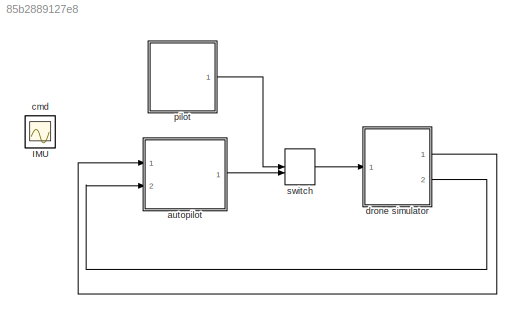
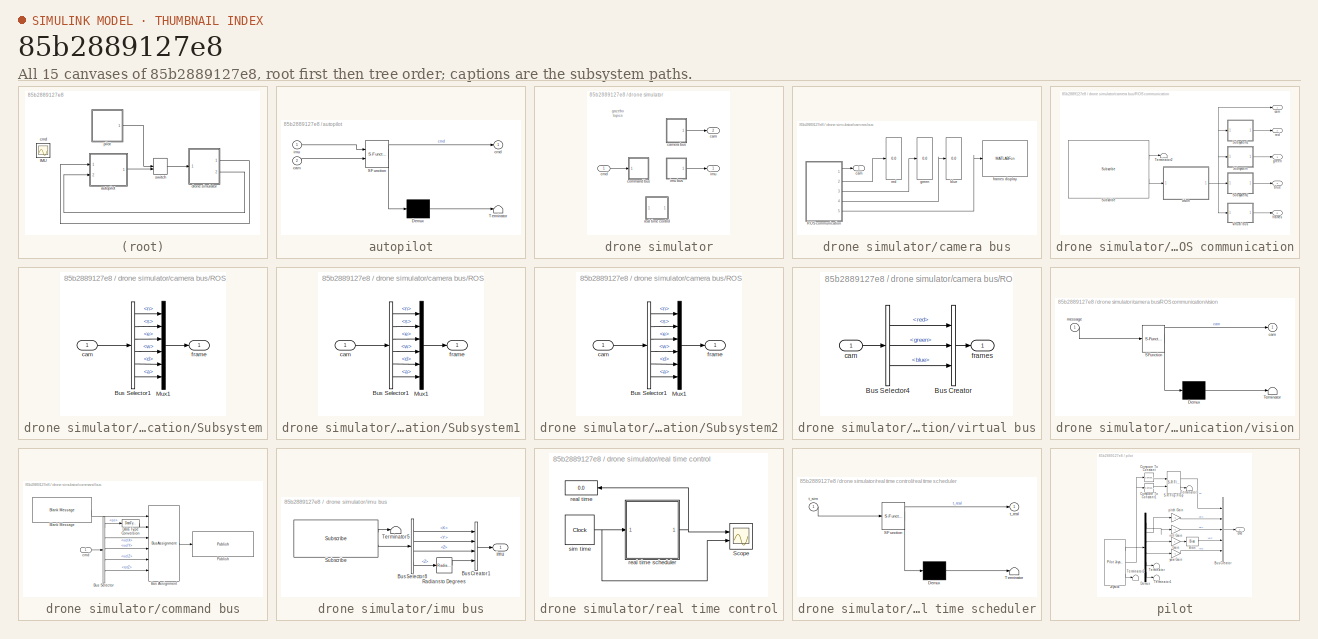
[diagram: thumbnail index - all 15 canvases of the model, root first then tree order]
MODEL slx_85b2889127e8
KIND model
CONFIG AbsTol = auto
CONFIG EnableMultiTasking = off
CONFIG FixedStep = sample_time
CONFIG MaxStep = auto
CONFIG MinStep = auto
CONFIG PostLoadFcn = load('drone_buses.mat');
CONFIG RelTol = 1e-3
CONFIG SampleTimeConstraint = Unconstrained
CONFIG Solver = FixedStepAuto
CONFIG SolverName = FixedStepAuto
CONFIG StartTime = 0.0
CONFIG StopTime = inf
WORKSPACE source: MAT-file member
WORKSPACE SL_ROS_VariableLengthArrays_MaxSizes: struct (value not decoded)
BLOCK [Scope] IMU
  IOType = viewer
  NumInputPorts = 1
  Ports = []
  ScopeSpecificationString = Simulink.scopes.TimeScopeBlockCfg('CurrentConfiguration', extmgr.ConfigurationSet(extmgr.Configuration('Core','General UI',true,'ShowStatusbar',false),extmgr.Configuration('Core','Source UI',true),extmgr.Configuration('Sources','WiredSimulink',true,'DataLoggingVariableName','ScopeData1'),extmgr.Configuration('Visuals','Time Domain',true,'TimeAxisLabels','None','SerializedDisplays',{struct('MinYLim...<+6666ch>
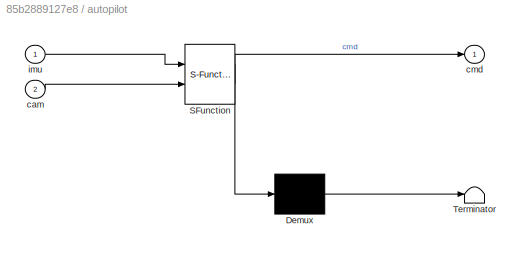
BLOCK [SubSystem] autopilot
  ErrorFcn = Stateflow.Translate.translate
  PermitHierarchicalResolution = ExplicitOnly
  Ports = [2, 1]
  RequestExecContextInheritance = off
  SFBlockType = Chart
  TreatAsAtomicUnit = on
  Variant = off
BLOCK [Demux] autopilot/ Demux 
  Outputs = 1
  Ports = [1, 1]
BLOCK [S-Function] autopilot/ SFunction 
  EnableBusSupport = on
  FunctionName = sf_sfun
  PortCounts = [2 2]
  Ports = [2, 2]
  SFcnIsStateOwnerBlock = off
  SFunctionDeploymentMode = off
  Tag = Stateflow S-Function drone_control2 3
BLOCK [Terminator] autopilot/ Terminator 
BLOCK [Inport] autopilot/cam
  IconDisplay = Port number
  Port = 2
BLOCK [Outport] autopilot/cmd
  IconDisplay = Port number
BLOCK [Inport] autopilot/imu
  IconDisplay = Port number
BLOCK [Scope] cmd
  IOType = viewer
  NumInputPorts = 1
  Ports = []
  ScopeSpecificationString = Simulink.scopes.TimeScopeBlockCfg('CurrentConfiguration', extmgr.ConfigurationSet(extmgr.Configuration('Core','General UI',true,'ShowStatusbar',false),extmgr.Configuration('Core','Source UI',true),extmgr.Configuration('Sources','WiredSimulink',true),extmgr.Configuration('Visuals','Time Domain',true,'TimeAxisLabels','None','SerializedDisplays',{struct('MinYLimReal','-1','MaxYLimReal','2','YLabelRea...<+4547ch>
BLOCK [SubSystem] drone simulator
  Ports = [1, 2]
  RequestExecContextInheritance = off
  Variant = off
BLOCK [Outport] drone simulator/cam
  IconDisplay = Port number
  Port = 2
BLOCK [SubSystem] drone simulator/camera bus
  Ports = [0, 1]
  RequestExecContextInheritance = off
  Variant = off
BLOCK [SubSystem] drone simulator/camera bus/ROS communication
  Ports = [0, 5]
  RequestExecContextInheritance = off
  Variant = off
BLOCK [Reference] drone simulator/camera bus/ROS communication/Subscribe  REF=robotlib/Subscribe
  Ports = [0, 2]
  SourceBlock = robotlib/Subscribe
  SourceLibraryInfo = This block requires Robotics System Toolbox
  SourceProductBaseCode = RO
  SourceProductName = Robotics System Toolbox
  SourceType = ROS Subscribe
BLOCK [SubSystem] drone simulator/camera bus/ROS communication/Subsystem
  Ports = [1, 1]
  RequestExecContextInheritance = off
  Variant = off
BLOCK [BusSelector] drone simulator/camera bus/ROS communication/Subsystem/Bus Selector1
  OutputAsBus = off
  OutputSignals = green.n,green.s,green.e,green.w,green.d,green.a
  Ports = [1, 6]
BLOCK [Mux] drone simulator/camera bus/ROS communication/Subsystem/Mux1
  DisplayOption = bar
  Inputs = 6
  Ports = [6, 1]
BLOCK [Inport] drone simulator/camera bus/ROS communication/Subsystem/cam
  IconDisplay = Port number
BLOCK [Outport] drone simulator/camera bus/ROS communication/Subsystem/frame
  IconDisplay = Port number
BLOCK [SubSystem] drone simulator/camera bus/ROS communication/Subsystem1
  Ports = [1, 1]
  RequestExecContextInheritance = off
  Variant = off
BLOCK [BusSelector] drone simulator/camera bus/ROS communication/Subsystem1/Bus Selector1
  OutputAsBus = off
  OutputSignals = red.n,red.s,red.e,red.w,red.d,red.a
  Ports = [1, 6]
BLOCK [Mux] drone simulator/camera bus/ROS communication/Subsystem1/Mux1
  DisplayOption = bar
  Inputs = 6
  Ports = [6, 1]
BLOCK [Inport] drone simulator/camera bus/ROS communication/Subsystem1/cam
  IconDisplay = Port number
BLOCK [Outport] drone simulator/camera bus/ROS communication/Subsystem1/frame
  IconDisplay = Port number
BLOCK [SubSystem] drone simulator/camera bus/ROS communication/Subsystem2
  Ports = [1, 1]
  RequestExecContextInheritance = off
  Variant = off
BLOCK [BusSelector] drone simulator/camera bus/ROS communication/Subsystem2/Bus Selector1
  OutputAsBus = off
  OutputSignals = blue.n,blue.s,blue.e,blue.w,blue.d,blue.a
  Ports = [1, 6]
BLOCK [Mux] drone simulator/camera bus/ROS communication/Subsystem2/Mux1
  DisplayOption = bar
  Inputs = 6
  Ports = [6, 1]
BLOCK [Inport] drone simulator/camera bus/ROS communication/Subsystem2/cam
  IconDisplay = Port number
BLOCK [Outport] drone simulator/camera bus/ROS communication/Subsystem2/frame
  IconDisplay = Port number
BLOCK [Terminator] drone simulator/camera bus/ROS communication/Terminator2
BLOCK [Outport] drone simulator/camera bus/ROS communication/blue
  IconDisplay = Port number
  Port = 4
BLOCK [Outport] drone simulator/camera bus/ROS communication/cam
  IconDisplay = Port number
BLOCK [Outport] drone simulator/camera bus/ROS communication/frames
  IconDisplay = Port number
  Port = 5
BLOCK [Outport] drone simulator/camera bus/ROS communication/green
  IconDisplay = Port number
  Port = 3
BLOCK [Outport] drone simulator/camera bus/ROS communication/red
  IconDisplay = Port number
  Port = 2
BLOCK [SubSystem] drone simulator/camera bus/ROS communication/virtual bus
  Ports = [1, 1]
  RequestExecContextInheritance = off
  Variant = off
BLOCK [BusCreator] drone simulator/camera bus/ROS communication/virtual bus/Bus Creator
  DisplayOption = bar
  InheritFromInputs = off
  Inputs = 3
  OutDataTypeStr = Bus: bus_camera
  Ports = [3, 1]
BLOCK [BusSelector] drone simulator/camera bus/ROS communication/virtual bus/Bus Selector4
  OutputAsBus = off
  OutputSignals = red,green,blue
  Ports = [1, 3]
BLOCK [Inport] drone simulator/camera bus/ROS communication/virtual bus/cam
  IconDisplay = Port number
BLOCK [Outport] drone simulator/camera bus/ROS communication/virtual bus/frames
  IconDisplay = Port number
BLOCK [SubSystem] drone simulator/camera bus/ROS communication/vision
  ErrorFcn = Stateflow.Translate.translate
  PermitHierarchicalResolution = ExplicitOnly
  Ports = [1, 1]
  RequestExecContextInheritance = off
  SFBlockType = MATLAB Function
  TreatAsAtomicUnit = on
  Variant = off
BLOCK [Demux] drone simulator/camera bus/ROS communication/vision/ Demux 
  Outputs = 1
  Ports = [1, 1]
BLOCK [S-Function] drone simulator/camera bus/ROS communication/vision/ SFunction 
  EnableBusSupport = on
  FunctionName = sf_sfun
  PortCounts = [1 2]
  Ports = [1, 2]
  SFcnIsStateOwnerBlock = off
  SFunctionDeploymentMode = off
  Tag = Stateflow S-Function drone_control2 4
BLOCK [Terminator] drone simulator/camera bus/ROS communication/vision/ Terminator 
BLOCK [Outport] drone simulator/camera bus/ROS communication/vision/cam
  IconDisplay = Port number
BLOCK [Inport] drone simulator/camera bus/ROS communication/vision/message
  IconDisplay = Port number
BLOCK [Display] drone simulator/camera bus/blue
  Decimation = 1
  Ports = [1]
BLOCK [Outport] drone simulator/camera bus/cam
  IconDisplay = Port number
BLOCK [MATLABFcn] drone simulator/camera bus/frames display
  MATLABFcn = frames_display
  Output1D = off
  OutputDimensions = 0
  Ports = [1]
  StartFcn = clear functions;\nclc;
BLOCK [Display] drone simulator/camera bus/green
  Decimation = 1
  Ports = [1]
BLOCK [Display] drone simulator/camera bus/red
  Decimation = 1
  Ports = [1]
BLOCK [Inport] drone simulator/cmd
  IconDisplay = Port number
BLOCK [SubSystem] drone simulator/command bus
  Ports = [1]
  RequestExecContextInheritance = off
  Variant = off
BLOCK [Reference] drone simulator/command bus/Blank Message  REF=robotlib/Blank Message
  Ports = [0, 1]
  SourceBlock = robotlib/Blank Message
  SourceLibraryInfo = This block requires Robotics System Toolbox
  SourceProductBaseCode = RO
  SourceProductName = Robotics System Toolbox
  SourceType = ROS Blank Message
BLOCK [BusAssignment] drone simulator/command bus/Bus Assignment
  AssignedSignals = Position.X,Orientation.X,Orientation.Y,Orientation.Z,Orientation.W
  Ports = [6, 1]
BLOCK [BusSelector] drone simulator/command bus/Bus Selector
  OutputAsBus = off
  OutputSignals = on,velX,velY,velZ,rotZ
  Ports = [1, 5]
BLOCK [DataTypeConversion] drone simulator/command bus/Data Type Conversion
  OutDataTypeStr = double
  RndMeth = Floor
  SaturateOnIntegerOverflow = off
BLOCK [Reference] drone simulator/command bus/Publish  REF=robotlib/Publish
  Ports = [1]
  SourceBlock = robotlib/Publish
  SourceLibraryInfo = This block requires Robotics System Toolbox
  SourceProductBaseCode = RO
  SourceProductName = Robotics System Toolbox
  SourceType = ROS Publish
BLOCK [Inport] drone simulator/command bus/cmd
  IconDisplay = Port number
BLOCK [Outport] drone simulator/imu
  IconDisplay = Port number
BLOCK [SubSystem] drone simulator/imu bus
  Ports = [0, 1]
  RequestExecContextInheritance = off
  Variant = off
BLOCK [BusCreator] drone simulator/imu bus/Bus Creator1
  DisplayOption = bar
  InheritFromInputs = off
  Inputs = 4
  NonVirtualBus = on
  OutDataTypeStr = Bus: bus_IMU
  Ports = [4, 1]
BLOCK [BusSelector] drone simulator/imu bus/Bus Selector8
  DialogController = Simulink.DDGSource_BusSelector
  OutputAsBus = off
  OutputSignals = Pose.Position.X,Pose.Position.Y,Pose.Position.Z,Pose.Orientation.Z
  Ports = [1, 4]
BLOCK [Reference] drone simulator/imu bus/Radians to Degrees  REF=simulink_extras/Transformations/Radians
to Degrees
  Ports = [1, 1]
  SourceBlock = simulink_extras/Transformations/Radians\nto Degrees
  SourceProductBaseCode = SL
  SourceProductName = Simulink
  SourceType = RadiansToDegrees
BLOCK [Reference] drone simulator/imu bus/Subscribe  REF=robotlib/Subscribe
  Ports = [0, 2]
  SourceBlock = robotlib/Subscribe
  SourceLibraryInfo = This block requires Robotics System Toolbox
  SourceProductBaseCode = RO
  SourceProductName = Robotics System Toolbox
  SourceType = ROS Subscribe
BLOCK [Terminator] drone simulator/imu bus/Terminator5
BLOCK [Outport] drone simulator/imu bus/imu
  IconDisplay = Port number
BLOCK [SubSystem] drone simulator/real time control
  Ports = []
  RequestExecContextInheritance = off
  Variant = off
BLOCK [Scope] drone simulator/real time control/Scope
  Commented = on
  NumInputPorts = 2
  Ports = [2]
  ScopeSpecificationString = Simulink.scopes.TimeScopeBlockCfg('CurrentConfiguration', extmgr.ConfigurationSet(extmgr.Configuration('Core','General UI',true),extmgr.Configuration('Core','Source UI',true),extmgr.Configuration('Sources','WiredSimulink',true),extmgr.Configuration('Visuals','Time Domain',true,'SerializedDisplays',{struct('MinYLimReal','0','MaxYLimReal','120','YLabelReal','','MinYLimMag','39.34789','MaxYLimMag','4...<+1531ch>
BLOCK [Display] drone simulator/real time control/real time
  Commented = on
  Decimation = 1
  Format = bank
  Ports = [1]
BLOCK [SubSystem] drone simulator/real time control/real time scheduler
  ErrorFcn = Stateflow.Translate.translate
  PermitHierarchicalResolution = ExplicitOnly
  Ports = [1, 1]
  RequestExecContextInheritance = off
  SFBlockType = MATLAB Function
  TreatAsAtomicUnit = on
  Variant = off
BLOCK [Demux] drone simulator/real time control/real time scheduler/ Demux 
  Outputs = 1
  Ports = [1, 1]
BLOCK [S-Function] drone simulator/real time control/real time scheduler/ SFunction 
  EnableBusSupport = on
  FunctionName = sf_sfun
  PortCounts = [1 2]
  Ports = [1, 2]
  SFcnIsStateOwnerBlock = off
  SFunctionDeploymentMode = off
  Tag = Stateflow S-Function drone_control2 2
BLOCK [Terminator] drone simulator/real time control/real time scheduler/ Terminator 
BLOCK [Outport] drone simulator/real time control/real time scheduler/t_real
  IconDisplay = Port number
BLOCK [Inport] drone simulator/real time control/real time scheduler/t_sim
  IconDisplay = Port number
BLOCK [Clock] drone simulator/real time control/sim time
  DisplayTime = on
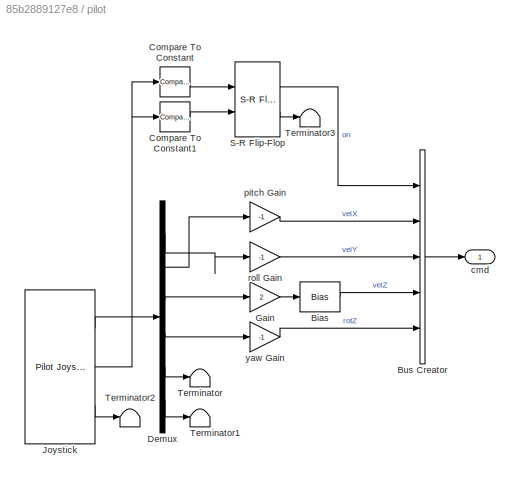
BLOCK [SubSystem] pilot
  Ports = [0, 1]
  RequestExecContextInheritance = off
  Variant = off
BLOCK [Bias] pilot/Bias
  Bias = -1
  SaturateOnIntegerOverflow = off
BLOCK [BusCreator] pilot/Bus Creator
  DisplayOption = bar
  InheritFromInputs = off
  Inputs = 5
  NonVirtualBus = on
  OutDataTypeStr = Bus: bus_command
  Ports = [5, 1]
BLOCK [Reference] pilot/Compare To Constant  REF=simulink/Logic and Bit
Operations/Compare
To Constant
  Ports = [1, 1]
  SourceBlock = simulink/Logic and Bit\nOperations/Compare\nTo Constant
  SourceProductBaseCode = SL
  SourceProductName = Simulink
  SourceType = Compare To Constant
BLOCK [Reference] pilot/Compare To Constant1  REF=simulink/Logic and Bit
Operations/Compare
To Constant
  Ports = [1, 1]
  SourceBlock = simulink/Logic and Bit\nOperations/Compare\nTo Constant
  SourceProductBaseCode = SL
  SourceProductName = Simulink
  SourceType = Compare To Constant
BLOCK [Demux] pilot/Demux
  DisplayOption = bar
  Outputs = 6
  Ports = [1, 6]
BLOCK [Gain] pilot/Gain
  Gain = 2
  OutDataTypeStr = Inherit: Inherit via internal rule
  ParamDataTypeStr = Inherit: Inherit via internal rule
  SaturateOnIntegerOverflow = off
BLOCK [Reference] pilot/Joystick  REF=aerolibanimutils/Pilot Joystick
  Ports = [0, 3]
  SourceBlock = aerolibanimutils/Pilot Joystick
  SourceProductBaseCode = AE
  SourceProductName = Aerospace Blockset
  SourceType = PilotJoystick
BLOCK [Reference] pilot/S-R Flip-Flop  REF=simulink_extras/Flip Flops/S-R
Flip-Flop
  Ports = [2, 2]
  SourceBlock = simulink_extras/Flip Flops/S-R\nFlip-Flop
  SourceProductBaseCode = SL
  SourceProductName = Simulink
  SourceType = SRFlipFlop
BLOCK [Terminator] pilot/Terminator
BLOCK [Terminator] pilot/Terminator1
BLOCK [Terminator] pilot/Terminator2
BLOCK [Terminator] pilot/Terminator3
BLOCK [Outport] pilot/cmd
  IconDisplay = Port number
BLOCK [Gain] pilot/pitch Gain
  Gain = -1
  OutDataTypeStr = Inherit: Inherit via internal rule
  ParamDataTypeStr = Inherit: Inherit via internal rule
  SaturateOnIntegerOverflow = off
BLOCK [Gain] pilot/roll Gain
  Gain = -1
  OutDataTypeStr = Inherit: Inherit via internal rule
  ParamDataTypeStr = Inherit: Inherit via internal rule
  SaturateOnIntegerOverflow = off
BLOCK [Gain] pilot/yaw Gain
  Gain = -1
  OutDataTypeStr = Inherit: Inherit via internal rule
  ParamDataTypeStr = Inherit: Inherit via internal rule
  SaturateOnIntegerOverflow = off
BLOCK [ManualSwitch] switch
  CurrentSetting = 0
ANNOTATION drone simulator: gazebo topics
LINE autopilot:1 -> switch:2
LINE drone simulator/camera bus/ROS communication/Subscribe:1 -> drone simulator/camera bus/ROS communication/Terminator2:1
LINE drone simulator/camera bus/ROS communication/Subscribe:2 -> drone simulator/camera bus/ROS communication/vision:1
LINE drone simulator/camera bus/ROS communication/Subsystem/Bus Selector1:1 -> drone simulator/camera bus/ROS communication/Subsystem/Mux1:1
LINE drone simulator/camera bus/ROS communication/Subsystem/Bus Selector1:2 -> drone simulator/camera bus/ROS communication/Subsystem/Mux1:2
LINE drone simulator/camera bus/ROS communication/Subsystem/Bus Selector1:3 -> drone simulator/camera bus/ROS communication/Subsystem/Mux1:3
LINE drone simulator/camera bus/ROS communication/Subsystem/Bus Selector1:4 -> drone simulator/camera bus/ROS communication/Subsystem/Mux1:4
LINE drone simulator/camera bus/ROS communication/Subsystem/Bus Selector1:5 -> drone simulator/camera bus/ROS communication/Subsystem/Mux1:5
LINE drone simulator/camera bus/ROS communication/Subsystem/Bus Selector1:6 -> drone simulator/camera bus/ROS communication/Subsystem/Mux1:6
LINE drone simulator/camera bus/ROS communication/Subsystem/Mux1:1 -> drone simulator/camera bus/ROS communication/Subsystem/frame:1
LINE drone simulator/camera bus/ROS communication/Subsystem/cam:1 -> drone simulator/camera bus/ROS communication/Subsystem/Bus Selector1:1
LINE drone simulator/camera bus/ROS communication/Subsystem1/Bus Selector1:1 -> drone simulator/camera bus/ROS communication/Subsystem1/Mux1:1
LINE drone simulator/camera bus/ROS communication/Subsystem1/Bus Selector1:2 -> drone simulator/camera bus/ROS communication/Subsystem1/Mux1:2
LINE drone simulator/camera bus/ROS communication/Subsystem1/Bus Selector1:3 -> drone simulator/camera bus/ROS communication/Subsystem1/Mux1:3
LINE drone simulator/camera bus/ROS communication/Subsystem1/Bus Selector1:4 -> drone simulator/camera bus/ROS communication/Subsystem1/Mux1:4
LINE drone simulator/camera bus/ROS communication/Subsystem1/Bus Selector1:5 -> drone simulator/camera bus/ROS communication/Subsystem1/Mux1:5
LINE drone simulator/camera bus/ROS communication/Subsystem1/Bus Selector1:6 -> drone simulator/camera bus/ROS communication/Subsystem1/Mux1:6
LINE drone simulator/camera bus/ROS communication/Subsystem1/Mux1:1 -> drone simulator/camera bus/ROS communication/Subsystem1/frame:1
LINE drone simulator/camera bus/ROS communication/Subsystem1/cam:1 -> drone simulator/camera bus/ROS communication/Subsystem1/Bus Selector1:1
LINE drone simulator/camera bus/ROS communication/Subsystem1:1 -> drone simulator/camera bus/ROS communication/red:1
LINE drone simulator/camera bus/ROS communication/Subsystem2/Bus Selector1:1 -> drone simulator/camera bus/ROS communication/Subsystem2/Mux1:1
LINE drone simulator/camera bus/ROS communication/Subsystem2/Bus Selector1:2 -> drone simulator/camera bus/ROS communication/Subsystem2/Mux1:2
LINE drone simulator/camera bus/ROS communication/Subsystem2/Bus Selector1:3 -> drone simulator/camera bus/ROS communication/Subsystem2/Mux1:3
LINE drone simulator/camera bus/ROS communication/Subsystem2/Bus Selector1:4 -> drone simulator/camera bus/ROS communication/Subsystem2/Mux1:4
LINE drone simulator/camera bus/ROS communication/Subsystem2/Bus Selector1:5 -> drone simulator/camera bus/ROS communication/Subsystem2/Mux1:5
LINE drone simulator/camera bus/ROS communication/Subsystem2/Bus Selector1:6 -> drone simulator/camera bus/ROS communication/Subsystem2/Mux1:6
LINE drone simulator/camera bus/ROS communication/Subsystem2/Mux1:1 -> drone simulator/camera bus/ROS communication/Subsystem2/frame:1
LINE drone simulator/camera bus/ROS communication/Subsystem2/cam:1 -> drone simulator/camera bus/ROS communication/Subsystem2/Bus Selector1:1
LINE drone simulator/camera bus/ROS communication/Subsystem2:1 -> drone simulator/camera bus/ROS communication/blue:1
LINE drone simulator/camera bus/ROS communication/Subsystem:1 -> drone simulator/camera bus/ROS communication/green:1
LINE drone simulator/camera bus/ROS communication/virtual bus/Bus Creator:1 -> drone simulator/camera bus/ROS communication/virtual bus/frames:1
LINE drone simulator/camera bus/ROS communication/virtual bus/Bus Selector4:1 -> drone simulator/camera bus/ROS communication/virtual bus/Bus Creator:1
LINE drone simulator/camera bus/ROS communication/virtual bus/Bus Selector4:2 -> drone simulator/camera bus/ROS communication/virtual bus/Bus Creator:2
LINE drone simulator/camera bus/ROS communication/virtual bus/Bus Selector4:3 -> drone simulator/camera bus/ROS communication/virtual bus/Bus Creator:3
LINE drone simulator/camera bus/ROS communication/virtual bus/cam:1 -> drone simulator/camera bus/ROS communication/virtual bus/Bus Selector4:1
LINE drone simulator/camera bus/ROS communication/virtual bus:1 -> drone simulator/camera bus/ROS communication/frames:1
NET drone simulator/camera bus/ROS communication/vision:1 -> drone simulator/camera bus/ROS communication/Subsystem1:1, drone simulator/camera bus/ROS communication/Subsystem2:1, drone simulator/camera bus/ROS communication/Subsystem:1, drone simulator/camera bus/ROS communication/cam:1, drone simulator/camera bus/ROS communication/virtual bus:1
LINE drone simulator/camera bus/ROS communication:1 -> drone simulator/camera bus/cam:1
LINE drone simulator/camera bus/ROS communication:2 -> drone simulator/camera bus/red:1
LINE drone simulator/camera bus/ROS communication:3 -> drone simulator/camera bus/green:1
LINE drone simulator/camera bus/ROS communication:4 -> drone simulator/camera bus/blue:1
LINE drone simulator/camera bus/ROS communication:5 -> drone simulator/camera bus/frames display:1
LINE drone simulator/camera bus:1 -> drone simulator/cam:1
LINE drone simulator/cmd:1 -> drone simulator/command bus:1
LINE drone simulator/command bus/Blank Message:1 -> drone simulator/command bus/Bus Assignment:1
LINE drone simulator/command bus/Bus Assignment:1 -> drone simulator/command bus/Publish:1
LINE drone simulator/command bus/Bus Selector:1 -> drone simulator/command bus/Data Type Conversion:1
LINE drone simulator/command bus/Bus Selector:2 -> drone simulator/command bus/Bus Assignment:3
LINE drone simulator/command bus/Bus Selector:3 -> drone simulator/command bus/Bus Assignment:4
LINE drone simulator/command bus/Bus Selector:4 -> drone simulator/command bus/Bus Assignment:5
LINE drone simulator/command bus/Bus Selector:5 -> drone simulator/command bus/Bus Assignment:6
LINE drone simulator/command bus/Data Type Conversion:1 -> drone simulator/command bus/Bus Assignment:2
LINE drone simulator/command bus/cmd:1 -> drone simulator/command bus/Bus Selector:1
LINE drone simulator/imu bus/Bus Creator1:1 -> drone simulator/imu bus/imu:1
LINE drone simulator/imu bus/Bus Selector8:1 -> drone simulator/imu bus/Bus Creator1:1
LINE drone simulator/imu bus/Bus Selector8:2 -> drone simulator/imu bus/Bus Creator1:2
LINE drone simulator/imu bus/Bus Selector8:3 -> drone simulator/imu bus/Bus Creator1:3
LINE drone simulator/imu bus/Bus Selector8:4 -> drone simulator/imu bus/Radians to Degrees:1
LINE drone simulator/imu bus/Radians to Degrees:1 -> drone simulator/imu bus/Bus Creator1:4
LINE drone simulator/imu bus/Subscribe:1 -> drone simulator/imu bus/Terminator5:1
LINE drone simulator/imu bus/Subscribe:2 -> drone simulator/imu bus/Bus Selector8:1
LINE drone simulator/imu bus:1 -> drone simulator/imu:1
NET drone simulator/real time control/real time scheduler:1 -> drone simulator/real time control/Scope:1, drone simulator/real time control/real time:1
NET drone simulator/real time control/sim time:1 -> drone simulator/real time control/Scope:2, drone simulator/real time control/real time scheduler:1
LINE drone simulator:1 -> autopilot:1
LINE drone simulator:2 -> autopilot:2
LINE pilot/Bias:1 -> pilot/Bus Creator:4
LINE pilot/Bus Creator:1 -> pilot/cmd:1
LINE pilot/Compare To Constant1:1 -> pilot/S-R Flip-Flop:2
LINE pilot/Compare To Constant:1 -> pilot/S-R Flip-Flop:1
LINE pilot/Demux:1 -> pilot/roll Gain:1
LINE pilot/Demux:2 -> pilot/pitch Gain:1
LINE pilot/Demux:3 -> pilot/Gain:1
LINE pilot/Demux:4 -> pilot/yaw Gain:1
LINE pilot/Demux:5 -> pilot/Terminator:1
LINE pilot/Demux:6 -> pilot/Terminator1:1
LINE pilot/Gain:1 -> pilot/Bias:1
LINE pilot/Joystick:1 -> pilot/Demux:1
NET pilot/Joystick:2 -> pilot/Compare To Constant1:1, pilot/Compare To Constant:1
LINE pilot/Joystick:3 -> pilot/Terminator2:1
LINE pilot/S-R Flip-Flop:1 -> pilot/Bus Creator:1
LINE pilot/S-R Flip-Flop:2 -> pilot/Terminator3:1
LINE pilot/pitch Gain:1 -> pilot/Bus Creator:2
LINE pilot/roll Gain:1 -> pilot/Bus Creator:3
LINE pilot/yaw Gain:1 -> pilot/Bus Creator:5
LINE pilot:1 -> switch:1
LINE switch:1 -> drone simulator:1
note: NET lines group one-source signal fan-out (src -> all destinations, sorted); 1:1 wires keep LINE
CHART drone
simulator/real time
control/real time
scheduler states=1 transitions=1
  STATE_LABEL 'eML_blk_kernel()'
  STATE_LABEL "SCRIPT:\nfunction t_real = fcn(t_sim)\n%#codegen\n\ncoder.extrinsic('tic');\ncoder.extrinsic('toc');\n\npersistent t0;\nif isempty(t0)\n    t0 = tic;\n    t_real = 0;\nend\n\nt_real = toc(t0);\n\nt_dif = t_sim - t_real;\nif t_dif > 0\n%    disp(t_dif)\n    pause(t_dif);\nend\n\nt_real = toc(t0);\n%disp(t_real)\n"
CHART autopilot states=8 transitions=8
  STATE_LABEL 'nav'
  STATE_LABEL 'ascenso\nentry:\ncmd.on = true;\ncmd.velZ = 0.80;\n'
  STATE_LABEL 'suspendido\nentry:\ncmd.velZ = 0;\n'
  STATE_LABEL 'descenso\nentry:\ncmd.velZ = -0.30;\n'
  STATE_LABEL 'stop\nentry:\ncmd.on = false;'
  STATE_LABEL 'after(2,sec)'
  STATE_LABEL '[imu.posZ > 4.00]'
  STATE_LABEL 'after(3,sec)'
  STATE_LABEL '[imu.posZ < 0.70]'
  STATE_LABEL 'ascenso\nentry:\ncmd.on = true;\ncmd.velZ = 0.80;\n'
  STATE_LABEL 'suspendido\nentry:\ncmd.velZ = 0;\n'
  STATE_LABEL 'descenso\nentry:\ncmd.velZ = -0.30;\n'
  STATE_LABEL 'stop\nentry:\ncmd.on = false;'
  STATE_LABEL 'camara'
  STATE_LABEL 'rojo_arriba\n'
  STATE_LABEL 'rojo_abajo\n'
  STATE_LABEL '[cam.red.n<0]'
  STATE_LABEL '[cam.red.n>0]'
  STATE_LABEL 'rojo_arriba\n'
  STATE_LABEL 'rojo_abajo\n'
CHART drone
simulator/camera bus/ROS 
communication/vision states=1 transitions=1
  STATE_LABEL 'eML_blk_kernel()'
  STATE_LABEL 'SCRIPT:\nfunction cam = fcn(message)\n\n% leemos la imagen\nwidth  = message.Width;\nheight = message.Height;\nimg    = message.Data;\n\n% establecemos los valores umbrales de deteccion de color\nth1 = 50;         % umbral entre color primario y secundarios\nth2 = 20;         % umbral entre colores secundarios\n\n% marco rojo\nframe_red.d = +inf;        % distancia estimada\nframe_red.a = +inf;        % angulo ...<+3247ch>'
